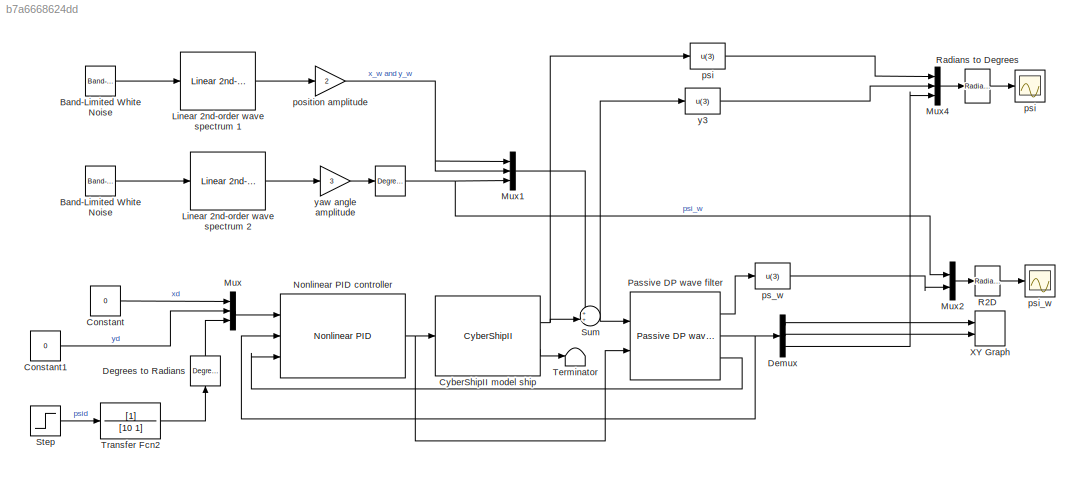
MODEL slx_b7a6668624dd
KIND model
CONFIG AbsTol = auto
CONFIG EnableMultiTasking = on
CONFIG FixedStep = auto
CONFIG MaxStep = auto
CONFIG MinStep = auto
CONFIG RelTol = 1e-3
CONFIG SampleTimeConstraint = Unconstrained
CONFIG SolverName = ode45
CONFIG StartTime = 0.0
CONFIG StopTime = 200
BLOCK [Reference]      REF=simulink_extras/Transformations/Degrees to
Radians
  Ports = [1, 1]
  SourceBlock = simulink_extras/Transformations/Degrees to\nRadians
  SourceProductBaseCode = SL
  SourceType = DegreesToRadians
BLOCK [Reference] Band-Limited White Noise  REF=simulink/Sources/Band-Limited
White Noise
  Ports = [0, 1]
  SourceBlock = simulink/Sources/Band-Limited\nWhite Noise
  SourceProductBaseCode = SL
  SourceType = Band-Limited White Noise.
BLOCK [Reference] Band-Limited White Noise    REF=simulink/Sources/Band-Limited
White Noise
  Ports = [0, 1]
  SourceBlock = simulink/Sources/Band-Limited\nWhite Noise
  SourceProductBaseCode = SL
  SourceType = Band-Limited White Noise.
BLOCK [Constant] Constant
  Value = 0
BLOCK [Constant] Constant1
  Value = 0
BLOCK [Reference] CyberShipII model ship  REF=mssSimulink/Marine craft models/CyberShipII
  Ports = [1, 2]
  SourceBlock = mssSimulink/Marine craft models/CyberShipII
BLOCK [Reference] Degrees to Radians  REF=simulink_extras/Transformations/Degrees to
Radians
  NameLocation = left
  Ports = [1, 1]
  SourceBlock = simulink_extras/Transformations/Degrees to\nRadians
  SourceProductBaseCode = SL
  SourceType = DegreesToRadians
BLOCK [Demux] Demux
  DisplayOption = none
  Outputs = 3
  Ports = [1, 3]
BLOCK [Reference] Linear 2nd-order wave spectrum 1  REF=mssSimulink/Environment/Waves/Linear 2nd-order 
wave spectrum
  Ports = [1, 1]
  SourceBlock = mssSimulink/Environment/Waves/Linear 2nd-order \nwave spectrum
BLOCK [Reference] Linear 2nd-order wave spectrum 2  REF=mssSimulink/Environment/Waves/Linear 2nd-order 
wave spectrum
  Ports = [1, 1]
  SourceBlock = mssSimulink/Environment/Waves/Linear 2nd-order \nwave spectrum
BLOCK [Mux] Mux
  DisplayOption = bar
  Inputs = 3
  Ports = [3, 1]
BLOCK [Mux] Mux1
  DisplayOption = bar
  Inputs = 3
  Ports = [3, 1]
BLOCK [Mux] Mux2
  DisplayOption = bar
  Inputs = 2
  Ports = [2, 1]
BLOCK [Mux] Mux4
  DisplayOption = bar
  Inputs = 3
  Ports = [3, 1]
BLOCK [Reference] Nonlinear PID controller  REF=mssSimulink/Control/DP/Nonlinear PID
  Ports = [3, 1]
  SourceBlock = mssSimulink/Control/DP/Nonlinear PID
  SourceType = Nonlinear DP Controller
BLOCK [Reference] Passive DP wave filter   REF=mssSimulink/Navigation/Estimators/Passive DP wave filter
  Ports = [2, 3]
  SourceBlock = mssSimulink/Navigation/Estimators/Passive DP wave filter
BLOCK [Reference] R2D  REF=simulink_extras/Transformations/Radians
to Degrees
  NameLocation = top
  Ports = [1, 1]
  SourceBlock = simulink_extras/Transformations/Radians\nto Degrees
  SourceProductBaseCode = SL
  SourceType = RadiansToDegrees
BLOCK [Reference] Radians to Degrees  REF=simulink_extras/Transformations/Radians
to Degrees
  NameLocation = top
  Ports = [1, 1]
  SourceBlock = simulink_extras/Transformations/Radians\nto Degrees
  SourceProductBaseCode = SL
  SourceType = RadiansToDegrees
BLOCK [Step] Step
  After = 10
  SampleTime = 0
  Time = 30
BLOCK [Sum] Sum  
  InputSameDT = on
  Inputs = ++|
  OutDataTypeStr = Inherit: Same as first input
  Ports = [2, 1]
  SaturateOnIntegerOverflow = on
BLOCK [Terminator] Terminator
BLOCK [TransferFcn] Transfer Fcn2
  Denominator = [10 1]
BLOCK [Record] XY Graph
  CompatibilityTag = XY
  FileSettingsInternal = {"entries":[{"content":{"excelSettings":{"content":{},"type":"Streamout.ExcelSettings"}},"type":"Streamout.FileSettingStorage","uuid":"980afe72-02da-470d-86cf-119735517d3f"}],"packageUris":["http://schema.mathworks.com/mf0/streamout_blocks/R2020a"],"version":"1.0"}
  Layout = [1 1]
  Ports = [2]
  SignalsInternal = {"entries":[{"content":{"signals":[{"content":{"blockPath":["demoCS2passiveObserverDP/XY Graph"],"channel":[],"dimensions":[1],"domain":"demoCS2passiveObserverDP/XY Graph","lineColor":"#a2142f","plots":[1],"port":1,"sid":[],"signalID":696,"signalName":"Demux:1"},"type":"RecordBlkView.Signal","uuid":"03f96aa2-6594-474c-8882-5a562ac3dc7d"},{"content":{"blockPath":["demoCS2passiveObserverDP/XY Graph"...<+421ch>
  VisualizationBindings = {"xyplotplugin":{"info":[{"series":[{"bindingParametersList":[{"parameter":"X-Axis","signalID":696,"signalName":"Demux:1"},{"parameter":"Y-Axis","signalID":699,"signalName":"Demux:2"}],"seriesID":51832}],"subplotID":1}]}}
  st = -1
BLOCK [Gain] position amplitude 
  Gain = 2
  NameLocation = top
  OutDataTypeStr = Inherit: Same as input
  ParamDataTypeStr = Inherit: Same as input
  SaturateOnIntegerOverflow = on
BLOCK [Fcn] ps_w
  Expr = u(3)
BLOCK [Fcn] psi
  Expr = u(3)
BLOCK [Scope] psi  
  Floating = off
  NumInputPorts = 1
  Ports = [1]
  ScopeSpecificationString = Simulink.scopes.TimeScopeBlockCfg('CurrentConfiguration', extmgr.ConfigurationSet(extmgr.Configuration('Core','General UI',true),extmgr.Configuration('Core','Source UI',true),extmgr.Configuration('Sources','WiredSimulink',true,'DataLoggingSaveFormat','StructureWithTime','DataLoggingLimitDataPoints',true,'DataLoggingDecimation','1','DataLoggingDecimateData',true),extmgr.Configuration('Visuals','Tim...<+1687ch>
BLOCK [Scope] psi_w
  Floating = off
  NumInputPorts = 1
  Ports = [1]
  ScopeSpecificationString = Simulink.scopes.TimeScopeBlockCfg('CurrentConfiguration', extmgr.ConfigurationSet(extmgr.Configuration('Core','General UI',true),extmgr.Configuration('Core','Source UI',true),extmgr.Configuration('Sources','WiredSimulink',true,'DataLoggingVariableName','ScopeData1','DataLoggingSaveFormat','StructureWithTime','DataLoggingLimitDataPoints',true,'DataLoggingDecimation','1','DataLoggingDecimateData',tr...<+1722ch>
BLOCK [Fcn] y3
  Expr = u(3)
BLOCK [Gain] yaw angle amplitude
  Gain = 3
  NameLocation = top
  OutDataTypeStr = Inherit: Same as input
  ParamDataTypeStr = Inherit: Same as input
  SaturateOnIntegerOverflow = on
NET    :1 -> Mux1:3, Mux2:1
LINE Band-Limited White Noise  :1 -> Linear 2nd-order wave spectrum 1:1
LINE Band-Limited White Noise:1 -> Linear 2nd-order wave spectrum 2:1
LINE Constant1:1 -> Mux:2
LINE Constant:1 -> Mux:1
NET CyberShipII model ship:1 -> Sum  :2, psi:1
LINE CyberShipII model ship:2 -> Terminator:1
LINE Degrees to Radians:1 -> Mux:3
LINE Demux:1 -> XY Graph:1
LINE Demux:2 -> XY Graph:2
LINE Demux:3 -> Mux4:3
LINE Linear 2nd-order wave spectrum 1:1 -> position amplitude :1
LINE Linear 2nd-order wave spectrum 2:1 -> yaw angle amplitude:1
LINE Mux1:1 -> Sum  :1
LINE Mux2:1 -> R2D:1
LINE Mux4:1 -> Radians to Degrees:1
LINE Mux:1 -> Nonlinear PID controller:1
NET Nonlinear PID controller:1 -> CyberShipII model ship:1, Passive DP wave filter :2
LINE Passive DP wave filter :1 -> ps_w:1
NET Passive DP wave filter :2 -> Demux:1, Nonlinear PID controller:2
LINE Passive DP wave filter :3 -> Nonlinear PID controller:3
LINE R2D:1 -> psi_w:1
LINE Radians to Degrees:1 -> psi  :1
LINE Step:1 -> Transfer Fcn2:1
NET Sum  :1 -> Passive DP wave filter :1, y3:1
LINE Transfer Fcn2:1 -> Degrees to Radians:1
NET position amplitude :1 -> Mux1:1, Mux1:2
LINE ps_w:1 -> Mux2:2
LINE psi:1 -> Mux4:1
LINE y3:1 -> Mux4:2
LINE yaw angle amplitude:1 ->    :1
note: NET lines group one-source signal fan-out (src -> all destinations, sorted); 1:1 wires keep LINE
